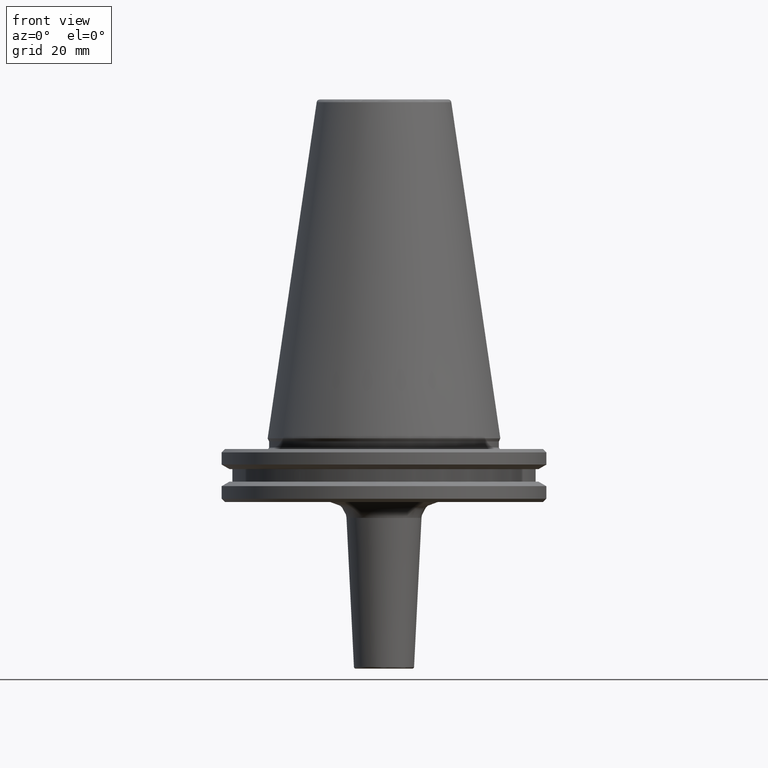
[diagram: clean part render]
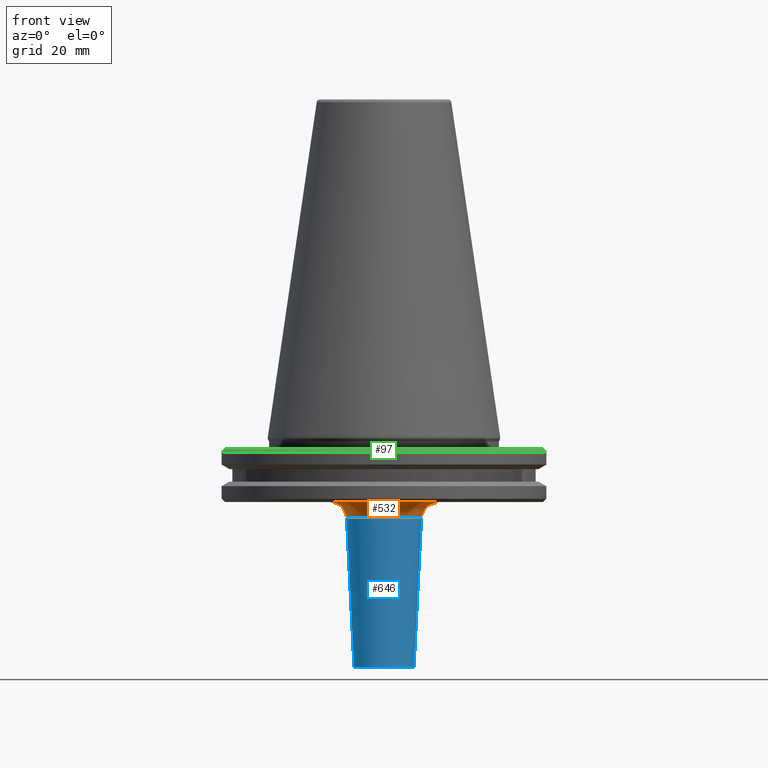
[diagram: same view with three faces highlighted in distinct colors, each labeled with its STEP entity id]
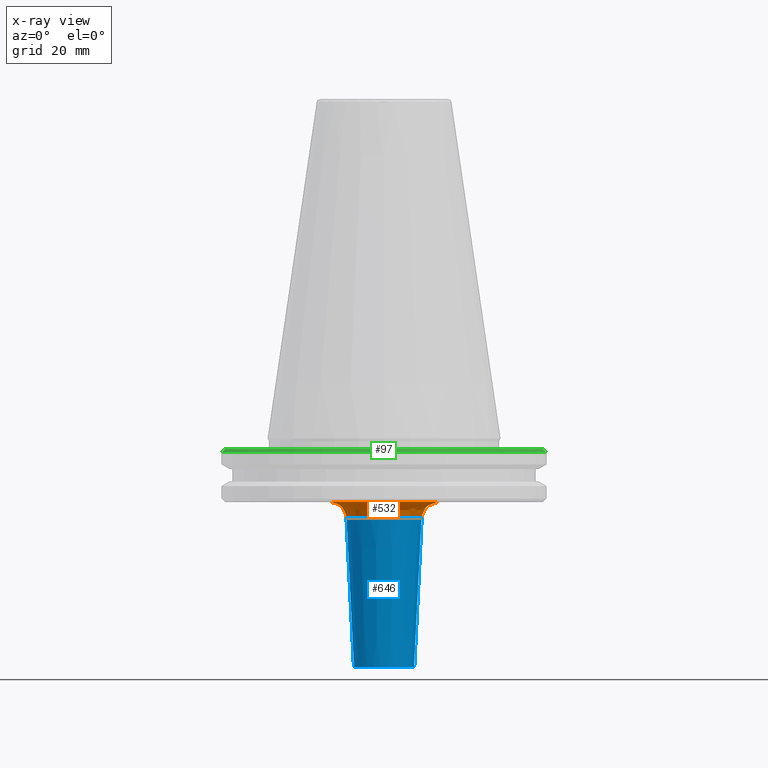
[diagram: x-ray of the same camera — body ghosted, the three highlighted faces saturated]
A machine part, front view with three faces highlighted in distinct colors.
The next image is the same camera in x-ray (body ghosted, the three faces saturated) — at least one of them is partly hidden behind the body in this view.
Their STEP definitions:

[orange] entity #532 — the highlighted face is a freeform B-spline surface patch.
#31 = CARTESIAN_POINT ( 'NONE',  ( -16.25624609862519400, 0.0000000000000000000, -19.10000000000000500 ) ) ;
#34 = CARTESIAN_POINT ( 'NONE',  ( 16.25624609862519400, 1.990815975083299200E-015, -19.10000000000000500 ) ) ;
#77 = CARTESIAN_POINT ( 'NONE',  ( 16.25624609862518700, -0.9944896297241667700, -19.10000000000000100 ) ) ;
#96 = CARTESIAN_POINT ( 'NONE',  ( 16.16578208544317600, -1.980501683347109900, -19.10000000000000500 ) ) ;
#101 = CARTESIAN_POINT ( 'NONE',  ( 15.97920005825526800, -2.988584113291415700, -19.10000000000000500 ) ) ;
#108 = CARTESIAN_POINT ( 'NONE',  ( 15.97276067736725800, -3.022830258312815900, -19.10000000000000900 ) ) ;
#120 = CARTESIAN_POINT ( 'NONE',  ( 15.96038008901330100, -3.087540710268735600, -19.10000000000000900 ) ) ;
#125 = CARTESIAN_POINT ( 'NONE',  ( 15.94152199984027600, -3.184522742714581700, -19.10000000000000900 ) ) ;
#133 = CARTESIAN_POINT ( 'NONE',  ( 15.89550934527534500, -3.410228633338638500, -19.10000000000000500 ) ) ;
#161 = CARTESIAN_POINT ( 'NONE',  ( 15.79544225016727500, -3.859298340921799100, -19.10000000000000500 ) ) ;
#181 = CARTESIAN_POINT ( 'NONE',  ( 15.56314091603833400, -4.748069461428223700, -19.10000000000000500 ) ) ;
#189 = CARTESIAN_POINT ( 'NONE',  ( 15.30888181150584500, -5.493813345302522900, -19.10000000000000500 ) ) ;
#199 = CARTESIAN_POINT ( 'NONE',  ( 15.10274154358021400, -6.014464738798348100, -19.10000000000000900 ) ) ;
#231 = CARTESIAN_POINT ( 'NONE',  ( 15.08948491553354500, -6.047654806972872200, -19.10000000000000500 ) ) ;
#233 = CARTESIAN_POINT ( 'NONE',  ( 15.06381459059165800, -6.111321170203168200, -19.10000000000000500 ) ) ;
#238 = CARTESIAN_POINT ( 'NONE',  ( 16.25624609862519400, 1.990815975083299200E-015, -19.10000000000000500 ) ) ;
#246 = AXIS2_PLACEMENT_3D ( 'NONE', #588, #1452, #954 ) ;
#249 = B_SPLINE_CURVE_WITH_KNOTS ( 'NONE', 3,
 ( #482, #1427, #1513, #1507, #1505, #1502, #1500, #1470, #1460, #1455, #1438, #1398, #1351, #1338, #1329, #1328, #1321, #1309, #1274, #1254, #1251, #1247, #1235, #1232, #1230, #1205, #1200, #1177, #1166, #1163, #1149, #1137, #1134, #1124, #1115, #1109, #1101, #1077, #1067, #1062, #1049, #1030, #1020, #1006, #995, #964, #950, #947, #933, #926, #898, #893, #888, #883, #882, #860, #841, #808, #799, #789, #772, #760, #758, #752, #742, #720, #709, #686, #680, #667, #627, #623, #620, #549, #536, #524, #484, #480, #475, #428, #406, #396, #374, #368, #328, #303, #281, #270, #233, #231, #199, #189, #181, #161, #133, #125, #120, #108, #101, #96, #77, #34 ),
 .UNSPECIFIED., .F., .F.,
 ( 4, 1, 1, 1, 1, 2, 2, 1, 1, 1, 1, 2, 2, 1, 1, 1, 2, 2, 2, 1, 1, 1, 2, 2, 1, 1, 1, 1, 2, 2, 1, 1, 1, 1, 2, 2, 2, 1, 1, 1, 1, 2, 2, 1, 1, 1, 1, 2, 2, 1, 1, 1, 2, 2, 2, 1, 1, 1, 2, 2, 1, 1, 1, 1, 2, 2, 1, 1, 1, 1, 2, 2, 4 ),
 ( 0.0000000000000000000, 0.03124999999999976400, 0.04687499999999966000, 0.05468749999999959100, 0.05859374999999955600, 0.06054687499999952100, 0.06249999999999948700, 0.09374999999999872300, 0.1093749999999983200, 0.1171874999999981100, 0.1210937499999979700, 0.1230468749999979200, 0.1249999999999978600, 0.1562499999999974200, 0.1718749999999971400, 0.1796874999999970300, 0.1835937499999970000, 0.1874999999999969700, 0.2499999999999958600, 0.2812499999999953400, 0.2968749999999950600, 0.3046874999999949500, 0.3085937499999948900, 0.3124999999999948900, 0.3437499999999946700, 0.3593749999999945600, 0.3671874999999945000, 0.3710937499999945000, 0.3730468749999944500, 0.3749999999999944500, 0.4062499999999956700, 0.4218749999999962800, 0.4296874999999966100, 0.4335937499999967800, 0.4355468749999968900, 0.4374999999999969500, 0.4999999999999987800, 0.5312499999999996700, 0.5468750000000001100, 0.5546875000000003300, 0.5585937500000005600, 0.5605468750000006700, 0.5625000000000007800, 0.5937500000000018900, 0.6093750000000024400, 0.6171875000000026600, 0.6210937500000027800, 0.6230468750000027800, 0.6250000000000026600, 0.6562500000000026600, 0.6718750000000026600, 0.6796875000000027800, 0.6835937500000027800, 0.6875000000000026600, 0.7500000000000021100, 0.7812500000000017800, 0.7968750000000016700, 0.8046875000000016700, 0.8085937500000016700, 0.8125000000000016700, 0.8437500000000017800, 0.8593750000000017800, 0.8671875000000016700, 0.8710937500000016700, 0.8730468750000016700, 0.8750000000000015500, 0.9062500000000012200, 0.9218750000000010000, 0.9296875000000008900, 0.9335937500000008900, 0.9355468750000007800, 0.9375000000000007800, 1.000000000000000000 ),
 .UNSPECIFIED. ) ;
#266 = CARTESIAN_POINT ( 'NONE',  ( -11.26248440423597300, 1.379256547609456900E-015, -23.85031191528054600 ) ) ;
#269 =( BOUNDED_SURFACE ( )  B_SPLINE_SURFACE ( 3, 3, ( 
 ( #373, #1144, #838, #790 ),
 ( #974, #721, #810, #958 ),
 ( #1227, #746, #716, #759 ),
 ( #754, #1449, #824, #817 ) ),
 .UNSPECIFIED., .F., .F., .T. ) 
 B_SPLINE_SURFACE_WITH_KNOTS ( ( 4, 4 ),
 ( 4, 4 ),
 ( 0.0000000000000000000, 1.000000000000000000 ),
 ( 0.0000000000000000000, 1.000000000000000000 ),
 .UNSPECIFIED. ) 
 GEOMETRIC_REPRESENTATION_ITEM ( )  RATIONAL_B_SPLINE_SURFACE ( (
 ( 1.000000000000000000, 0.3333333333333334300, 0.3333333333333334300, 1.000000000000000000),
 ( 0.8163648751936719600, 0.2721216250645573900, 0.2721216250645573900, 0.8163648751936719600),
 ( 0.8163648751936719600, 0.2721216250645573900, 0.2721216250645573900, 0.8163648751936719600),
 ( 1.000000000000000000, 0.3333333333333334300, 0.3333333333333334300, 1.000000000000000000) ) ) 
 REPRESENTATION_ITEM ( '' )  SURFACE ( )  );
#270 = CARTESIAN_POINT ( 'NONE',  ( 15.02502130439688700, -6.206670457545801200, -19.10000000000000900 ) ) ;
#281 = CARTESIAN_POINT ( 'NONE',  ( 14.93248904513546900, -6.428100325492272800, -19.10000000000000500 ) ) ;
#303 = CARTESIAN_POINT ( 'NONE',  ( 14.73936616071815000, -6.866752851306567400, -19.10000000000000900 ) ) ;
#328 = CARTESIAN_POINT ( 'NONE',  ( 14.32088692830555100, -7.727229062620486900, -19.10000000000000500 ) ) ;
#356 = CIRCLE ( 'NONE', #460, 5.000000000000000900 ) ;
#368 = CARTESIAN_POINT ( 'NONE',  ( 13.90693307724685300, -8.435930660350155800, -19.10000000000000500 ) ) ;
#373 = CARTESIAN_POINT ( 'NONE',  ( 16.25624609862519400, 1.990815975083299200E-015, -19.10000000000000900 ) ) ;
#374 = CARTESIAN_POINT ( 'NONE',  ( 13.56883900588601800, -8.953032138377713200, -19.10000000000000500 ) ) ;
#386 = EDGE_CURVE ( 'NONE', #399, #1291, #405, .T. ) ;
#396 = CARTESIAN_POINT ( 'NONE',  ( 13.52926321668050000, -9.012741250741493500, -19.10000000000000900 ) ) ;
#399 = VERTEX_POINT ( 'NONE', #31 ) ;
#400 = ORIENTED_EDGE ( 'NONE', *, *, #386, .T. ) ;
#405 = CIRCLE ( 'NONE', #594, 5.000000000000000900 ) ;
#406 = CARTESIAN_POINT ( 'NONE',  ( 13.45107262910401000, -9.129048701688153900, -19.10000000000000500 ) ) ;
#409 = CARTESIAN_POINT ( 'NONE',  ( 11.26248440423597300, 0.0000000000000000000, -23.85031191528054600 ) ) ;
#416 = DIRECTION ( 'NONE',  ( 1.000000000000000000, 1.224646799147353500E-016, 0.0000000000000000000 ) ) ;
#417 = ORIENTED_EDGE ( 'NONE', *, *, #1363, .F. ) ;
#428 = CARTESIAN_POINT ( 'NONE',  ( 13.33273795729730100, -9.302652496910194900, -19.10000000000000900 ) ) ;
#429 = DIRECTION ( 'NONE',  ( 1.224646799147353200E-016, -1.000000000000000000, 0.0000000000000000000 ) ) ;
#436 = CARTESIAN_POINT ( 'NONE',  ( 16.25624609862519400, 1.990815975083299200E-015, -24.10000000000000900 ) ) ;
#460 = AXIS2_PLACEMENT_3D ( 'NONE', #436, #429, #416 ) ;
#475 = CARTESIAN_POINT ( 'NONE',  ( 13.04928218998776400, -9.701726350709279200, -19.10000000000000900 ) ) ;
#480 = CARTESIAN_POINT ( 'NONE',  ( 12.45300452299316900, -10.47586738476476300, -19.10000000000000500 ) ) ;
#482 = CARTESIAN_POINT ( 'NONE',  ( -16.25624609862519400, 0.0000000000000000000, -19.10000000000000500 ) ) ;
#484 = CARTESIAN_POINT ( 'NONE',  ( 11.89156743863978200, -11.09826254502484700, -19.10000000000001200 ) ) ;
#518 = DIRECTION ( 'NONE',  ( -1.000000000000000000, 0.0000000000000000000, 0.0000000000000000000 ) ) ;
#524 = CARTESIAN_POINT ( 'NONE',  ( 10.70157068164613200, -12.28818046887600200, -19.10000000000000500 ) ) ;
#532 = ADVANCED_FACE ( 'NONE', ( #1208 ), #269, .F. ) ;
#536 = CARTESIAN_POINT ( 'NONE',  ( 9.834623893887398400, -12.99251979866894400, -19.10000000000000100 ) ) ;
#549 = CARTESIAN_POINT ( 'NONE',  ( 8.836885951391213500, -13.64477283976162300, -19.10000000000000100 ) ) ;
#588 = CARTESIAN_POINT ( 'NONE',  ( 0.0000000000000000000, 0.0000000000000000000, -23.85031191528054600 ) ) ;
#594 = AXIS2_PLACEMENT_3D ( 'NONE', #1191, #1314, #518 ) ;
#620 = CARTESIAN_POINT ( 'NONE',  ( 8.780388987827509000, -13.68119233603542500, -19.10000000000000100 ) ) ;
#623 = CARTESIAN_POINT ( 'NONE',  ( 8.664607847808580800, -13.75482468525016200, -19.10000000000000900 ) ) ;
#627 = CARTESIAN_POINT ( 'NONE',  ( 8.490342428530613700, -13.86411823606656500, -19.10000000000000500 ) ) ;
#667 = CARTESIAN_POINT ( 'NONE',  ( 8.079567152135075100, -14.11105171026500400, -19.10000000000000500 ) ) ;
#680 = CARTESIAN_POINT ( 'NONE',  ( 7.241392740356156200, -14.57257941450248500, -19.10000000000000500 ) ) ;
#686 = CARTESIAN_POINT ( 'NONE',  ( 6.494459486280769400, -14.91273588528994400, -19.10000000000000500 ) ) ;
#693 = EDGE_CURVE ( 'NONE', #1421, #726, #356, .T. ) ;
#709 = CARTESIAN_POINT ( 'NONE',  ( 5.951924354987205800, -15.12750066396870500, -19.10000000000000500 ) ) ;
#716 = CARTESIAN_POINT ( 'NONE',  ( -11.40301902046447500, -22.80603804092895700, -21.03961959071042600 ) ) ;
#720 = CARTESIAN_POINT ( 'NONE',  ( 5.922515818704218800, -15.13903545249559800, -19.10000000000000900 ) ) ;
#721 = CARTESIAN_POINT ( 'NONE',  ( 13.44204260176221200, -26.88408520352440700, -19.10000000000001200 ) ) ;
#724 = ORIENTED_EDGE ( 'NONE', *, *, #903, .F. ) ;
#726 = VERTEX_POINT ( 'NONE', #409 ) ;
#742 = CARTESIAN_POINT ( 'NONE',  ( 5.861111776184876600, -15.16291568760217400, -19.10000000000000500 ) ) ;
#746 = CARTESIAN_POINT ( 'NONE',  ( 11.40301902046448400, -22.80603804092895400, -21.03961959071042600 ) ) ;
#752 = CARTESIAN_POINT ( 'NONE',  ( 5.768924037422070100, -15.19844826456647800, -19.10000000000000500 ) ) ;
#754 = CARTESIAN_POINT ( 'NONE',  ( 11.26248440423597200, 1.379256547609456700E-015, -23.85031191528054600 ) ) ;
#758 = CARTESIAN_POINT ( 'NONE',  ( 5.553247588755622700, -15.27934318094765400, -19.10000000000000900 ) ) ;
#759 = CARTESIAN_POINT ( 'NONE',  ( -11.40301902046448000, -2.792934148805643100E-015, -21.03961959071043400 ) ) ;
#760 = CARTESIAN_POINT ( 'NONE',  ( 5.119607791876492600, -15.43307529423457000, -19.10000000000000900 ) ) ;
#772 = CARTESIAN_POINT ( 'NONE',  ( 4.243180599933277000, -15.70830864290658400, -19.10000000000000900 ) ) ;
#789 = CARTESIAN_POINT ( 'NONE',  ( 3.476275695664886800, -15.88897000822237300, -19.10000000000000500 ) ) ;
#790 = CARTESIAN_POINT ( 'NONE',  ( -16.25624609862519400, -3.981631950166598400E-015, -19.10000000000000900 ) ) ;
#799 = CARTESIAN_POINT ( 'NONE',  ( 2.925646189944105700, -15.99084681225769200, -19.09999999999999800 ) ) ;
#808 = CARTESIAN_POINT ( 'NONE',  ( 2.896899320433258000, -15.99607571195456900, -19.10000000000000500 ) ) ;
#810 = CARTESIAN_POINT ( 'NONE',  ( -13.44204260176220000, -26.88408520352441000, -19.10000000000001200 ) ) ;
#817 = CARTESIAN_POINT ( 'NONE',  ( -11.26248440423597200, -2.758513095218913400E-015, -23.85031191528054600 ) ) ;
#824 = CARTESIAN_POINT ( 'NONE',  ( -11.26248440423596400, -22.52496880847193900, -23.85031191528054600 ) ) ;
#838 = CARTESIAN_POINT ( 'NONE',  ( -16.25624609862518700, -32.51249219725038800, -19.10000000000000900 ) ) ;
#841 = CARTESIAN_POINT ( 'NONE',  ( 2.835739198430238700, -16.00703223854182900, -19.10000000000000100 ) ) ;
#846 = ORIENTED_EDGE ( 'NONE', *, *, #693, .F. ) ;
#860 = CARTESIAN_POINT ( 'NONE',  ( 2.743975733858285500, -16.02320190213454500, -19.10000000000000100 ) ) ;
#882 = CARTESIAN_POINT ( 'NONE',  ( 2.529698012218458900, -16.05907523316702500, -19.10000000000000500 ) ) ;
#883 = CARTESIAN_POINT ( 'NONE',  ( 2.100490685051016100, -16.12339835916327900, -19.10000000000000500 ) ) ;
#888 = CARTESIAN_POINT ( 'NONE',  ( 1.239468495165013000, -16.22235046688082600, -19.10000000000000100 ) ) ;
#893 = CARTESIAN_POINT ( 'NONE',  ( 0.4969794143179479500, -16.25626231188170200, -19.10000000000001200 ) ) ;
#898 = CARTESIAN_POINT ( 'NONE',  ( -0.9939588286358934700, -16.25621367211217100, -19.10000000000000500 ) ) ;
#903 = EDGE_CURVE ( 'NONE', #726, #1291, #1295, .T. ) ;
#926 = CARTESIAN_POINT ( 'NONE',  ( -1.980677004737839700, -16.16574963589389900, -19.10000000000000900 ) ) ;
#933 = CARTESIAN_POINT ( 'NONE',  ( -2.988578634497955000, -15.97920107230368600, -19.10000000000000500 ) ) ;
#947 = CARTESIAN_POINT ( 'NONE',  ( -3.022830258312815000, -15.97276067736725800, -19.10000000000000900 ) ) ;
#950 = CARTESIAN_POINT ( 'NONE',  ( -3.087540710268733300, -15.96038008901329700, -19.09999999999999800 ) ) ;
#954 = DIRECTION ( 'NONE',  ( -1.000000000000000000, 0.0000000000000000000, 0.0000000000000000000 ) ) ;
#958 = CARTESIAN_POINT ( 'NONE',  ( -13.44204260176220700, -3.292350889250089300E-015, -19.10000000000000900 ) ) ;
#964 = CARTESIAN_POINT ( 'NONE',  ( -3.184522742714580400, -15.94152199984028300, -19.10000000000000900 ) ) ;
#974 = CARTESIAN_POINT ( 'NONE',  ( 13.44204260176220700, 1.646175444625044600E-015, -19.10000000000000900 ) ) ;
#995 = CARTESIAN_POINT ( 'NONE',  ( -3.410228633338642900, -15.89550934527534100, -19.10000000000000500 ) ) ;
#1006 = CARTESIAN_POINT ( 'NONE',  ( -3.859298340921796500, -15.79544225016727000, -19.10000000000000100 ) ) ;
#1020 = CARTESIAN_POINT ( 'NONE',  ( -4.748069461428234400, -15.56314091603833000, -19.10000000000000900 ) ) ;
#1030 = CARTESIAN_POINT ( 'NONE',  ( -5.493813345302530000, -15.30888181150585000, -19.10000000000000500 ) ) ;
#1049 = CARTESIAN_POINT ( 'NONE',  ( -6.014464738798346300, -15.10274154358020800, -19.10000000000000100 ) ) ;
#1062 = CARTESIAN_POINT ( 'NONE',  ( -6.047654806972512500, -15.08948491553368300, -19.10000000000000500 ) ) ;
#1067 = CARTESIAN_POINT ( 'NONE',  ( -6.111321170202463000, -15.06381459059194100, -19.10000000000000500 ) ) ;
#1077 = CARTESIAN_POINT ( 'NONE',  ( -6.206670457544599500, -15.02502130439736300, -19.10000000000000500 ) ) ;
#1093 = EDGE_LOOP ( 'NONE', ( #846, #417, #400, #724 ) ) ;
#1101 = CARTESIAN_POINT ( 'NONE',  ( -6.428100325490029300, -14.93248904513635900, -19.10000000000000500 ) ) ;
#1109 = CARTESIAN_POINT ( 'NONE',  ( -6.866752851302716300, -14.73936616071966700, -19.10000000000000900 ) ) ;
#1115 = CARTESIAN_POINT ( 'NONE',  ( -7.727229062615359500, -14.32088692830758200, -19.10000000000000900 ) ) ;
#1124 = CARTESIAN_POINT ( 'NONE',  ( -8.435930660347237300, -13.90693307724800600, -19.10000000000000500 ) ) ;
#1134 = CARTESIAN_POINT ( 'NONE',  ( -8.953032138378082600, -13.56883900588587200, -19.10000000000000500 ) ) ;
#1137 = CARTESIAN_POINT ( 'NONE',  ( -9.012741250739688700, -13.52926321668186600, -19.10000000000000500 ) ) ;
#1144 = CARTESIAN_POINT ( 'NONE',  ( 16.25624609862519800, -32.51249219725037400, -19.10000000000000900 ) ) ;
#1149 = CARTESIAN_POINT ( 'NONE',  ( -9.129048701684721900, -13.45107262910661600, -19.10000000000000900 ) ) ;
#1163 = CARTESIAN_POINT ( 'NONE',  ( -9.302652496904483900, -13.33273795730162300, -19.10000000000000100 ) ) ;
#1166 = CARTESIAN_POINT ( 'NONE',  ( -9.701726350699498600, -13.04928218999517300, -19.10000000000000500 ) ) ;
#1177 = CARTESIAN_POINT ( 'NONE',  ( -10.47586738475171600, -12.45300452300304900, -19.10000000000000500 ) ) ;
#1191 = CARTESIAN_POINT ( 'NONE',  ( -16.25624609862519400, 0.0000000000000000000, -24.10000000000000900 ) ) ;
#1200 = CARTESIAN_POINT ( 'NONE',  ( -11.09826254501739800, -11.89156743864543100, -19.10000000000000900 ) ) ;
#1205 = CARTESIAN_POINT ( 'NONE',  ( -12.28818046889091100, -10.70157068163482900, -19.10000000000000100 ) ) ;
#1208 = FACE_OUTER_BOUND ( 'NONE', #1093, .T. ) ;
#1227 = CARTESIAN_POINT ( 'NONE',  ( 11.40301902046448000, 1.396467074402821200E-015, -21.03961959071043400 ) ) ;
#1230 = CARTESIAN_POINT ( 'NONE',  ( -12.99251979867530200, -9.834623893884659300, -19.10000000000000500 ) ) ;
#1232 = CARTESIAN_POINT ( 'NONE',  ( -13.64477283976123100, -8.836885951391389300, -19.10000000000000500 ) ) ;
#1235 = CARTESIAN_POINT ( 'NONE',  ( -13.68119233603611600, -8.780388987825627800, -19.10000000000000100 ) ) ;
#1247 = CARTESIAN_POINT ( 'NONE',  ( -13.75482468525147400, -8.664607847804997900, -19.10000000000000500 ) ) ;
#1251 = CARTESIAN_POINT ( 'NONE',  ( -13.86411823606875300, -8.490342428524670000, -19.10000000000000500 ) ) ;
#1254 = CARTESIAN_POINT ( 'NONE',  ( -14.11105171026873800, -8.079567152124877100, -19.10000000000000900 ) ) ;
#1274 = CARTESIAN_POINT ( 'NONE',  ( -14.57257941450746200, -7.241392740342544900, -19.10000000000000100 ) ) ;
#1291 = VERTEX_POINT ( 'NONE', #266 ) ;
#1295 = CIRCLE ( 'NONE', #246, 11.26248440423597000 ) ;
#1309 = CARTESIAN_POINT ( 'NONE',  ( -14.91273588529279300, -6.494459486272990700, -19.10000000000000100 ) ) ;
#1314 = DIRECTION ( 'NONE',  ( 0.0000000000000000000, 1.000000000000000000, 0.0000000000000000000 ) ) ;
#1321 = CARTESIAN_POINT ( 'NONE',  ( -15.12750066396851700, -5.951924354987689900, -19.10000000000000500 ) ) ;
#1328 = CARTESIAN_POINT ( 'NONE',  ( -15.13903545249528500, -5.922515818705082100, -19.10000000000000100 ) ) ;
#1329 = CARTESIAN_POINT ( 'NONE',  ( -15.16291568760155600, -5.861111776186560500, -19.10000000000000100 ) ) ;
#1338 = CARTESIAN_POINT ( 'NONE',  ( -15.19844826456542600, -5.768924037424946900, -19.10000000000000900 ) ) ;
#1351 = CARTESIAN_POINT ( 'NONE',  ( -15.27934318094570000, -5.553247588760992700, -19.10000000000000900 ) ) ;
#1363 = EDGE_CURVE ( 'NONE', #399, #1421, #249, .T. ) ;
#1398 = CARTESIAN_POINT ( 'NONE',  ( -15.43307529423121100, -5.119607791885702100, -19.10000000000000900 ) ) ;
#1421 = VERTEX_POINT ( 'NONE', #238 ) ;
#1427 = CARTESIAN_POINT ( 'NONE',  ( -16.25624609862520500, -0.4970670446490914100, -19.10000000000000900 ) ) ;
#1438 = CARTESIAN_POINT ( 'NONE',  ( -15.70830864290211400, -4.243180599945557000, -19.10000000000000900 ) ) ;
#1449 = CARTESIAN_POINT ( 'NONE',  ( 11.26248440423597300, -22.52496880847193600, -23.85031191528054600 ) ) ;
#1452 = DIRECTION ( 'NONE',  ( 0.0000000000000000000, 0.0000000000000000000, -1.000000000000000000 ) ) ;
#1455 = CARTESIAN_POINT ( 'NONE',  ( -15.88897000821981600, -3.476275695671909200, -19.10000000000000100 ) ) ;
#1460 = CARTESIAN_POINT ( 'NONE',  ( -15.99084681225785500, -2.925646189943667900, -19.10000000000000100 ) ) ;
#1470 = CARTESIAN_POINT ( 'NONE',  ( -15.99607371696402000, -2.896910103071662400, -19.10000000000000500 ) ) ;
#1500 = CARTESIAN_POINT ( 'NONE',  ( -16.00702834356028600, -2.835760250248073400, -19.10000000000000100 ) ) ;
#1502 = CARTESIAN_POINT ( 'NONE',  ( -16.02319525216605500, -2.744011675986296700, -19.10000000000000100 ) ) ;
#1505 = CARTESIAN_POINT ( 'NONE',  ( -16.05906281989251400, -2.529765104190739900, -19.09999999999999800 ) ) ;
#1507 = CARTESIAN_POINT ( 'NONE',  ( -16.12337707926409900, -2.100605699860643000, -19.10000000000000500 ) ) ;
#1513 = CARTESIAN_POINT ( 'NONE',  ( -16.22232209368193900, -1.239621848244517400, -19.10000000000000500 ) ) ;

[blue] entity #646 — the highlighted conical surface has half-angle 2.862 deg.
#2 = CARTESIAN_POINT ( 'NONE',  ( 9.023751559576402000, 0.0000000000000000000, -68.62496880847193400 ) ) ;
#65 = FACE_OUTER_BOUND ( 'NONE', #1323, .T. ) ;
#151 = DIRECTION ( 'NONE',  ( 1.000000000000000000, 0.0000000000000000000, 0.0000000000000000000 ) ) ;
#215 = DIRECTION ( 'NONE',  ( 0.04993761694389226700, 0.0000000000000000000, 0.9987523388778446500 ) ) ;
#242 = DIRECTION ( 'NONE',  ( 0.0000000000000000000, 0.0000000000000000000, 1.000000000000000000 ) ) ;
#246 = AXIS2_PLACEMENT_3D ( 'NONE', #588, #1452, #954 ) ;
#257 = CARTESIAN_POINT ( 'NONE',  ( 11.26248440423597300, 0.0000000000000000000, -23.85031191528056000 ) ) ;
#266 = CARTESIAN_POINT ( 'NONE',  ( -11.26248440423597300, 1.379256547609456900E-015, -23.85031191528054600 ) ) ;
#409 = CARTESIAN_POINT ( 'NONE',  ( 11.26248440423597300, 0.0000000000000000000, -23.85031191528054600 ) ) ;
#451 = CARTESIAN_POINT ( 'NONE',  ( -9.023751559576402000, 1.242173696991537300E-015, -68.62496880847193400 ) ) ;
#452 = EDGE_CURVE ( 'NONE', #1375, #1184, #1386, .T. ) ;
#556 = EDGE_CURVE ( 'NONE', #1375, #1291, #1428, .T. ) ;
#561 = ORIENTED_EDGE ( 'NONE', *, *, #452, .T. ) ;
#574 = CARTESIAN_POINT ( 'NONE',  ( 0.0000000000000000000, 0.0000000000000000000, -23.85031191528056000 ) ) ;
#583 = DIRECTION ( 'NONE',  ( 1.000000000000000000, 0.0000000000000000000, 0.0000000000000000000 ) ) ;
#588 = CARTESIAN_POINT ( 'NONE',  ( 0.0000000000000000000, 0.0000000000000000000, -23.85031191528054600 ) ) ;
#599 = DIRECTION ( 'NONE',  ( 0.0000000000000000000, 0.0000000000000000000, 1.000000000000000000 ) ) ;
#646 = ADVANCED_FACE ( 'NONE', ( #65 ), #1264, .T. ) ;
#661 = ORIENTED_EDGE ( 'NONE', *, *, #1456, .T. ) ;
#726 = VERTEX_POINT ( 'NONE', #409 ) ;
#813 = AXIS2_PLACEMENT_3D ( 'NONE', #1056, #242, #151 ) ;
#873 = DIRECTION ( 'NONE',  ( -0.04993761694389226700, 6.115594274738429300E-018, 0.9987523388778446500 ) ) ;
#889 = VECTOR ( 'NONE', #873, 1000.000000000000200 ) ;
#903 = EDGE_CURVE ( 'NONE', #726, #1291, #1295, .T. ) ;
#927 = CARTESIAN_POINT ( 'NONE',  ( -11.26248440423597300, 1.379256547609456900E-015, -23.85031191528056000 ) ) ;
#954 = DIRECTION ( 'NONE',  ( -1.000000000000000000, 0.0000000000000000000, 0.0000000000000000000 ) ) ;
#1009 = AXIS2_PLACEMENT_3D ( 'NONE', #574, #599, #583 ) ;
#1056 = CARTESIAN_POINT ( 'NONE',  ( 0.0000000000000000000, 0.0000000000000000000, -68.62496880847193400 ) ) ;
#1089 = LINE ( 'NONE', #257, #1175 ) ;
#1175 = VECTOR ( 'NONE', #215, 1000.000000000000200 ) ;
#1184 = VERTEX_POINT ( 'NONE', #2 ) ;
#1264 = CONICAL_SURFACE ( 'NONE', #1009, 11.26248440423597300, 0.04995839572194279300 ) ;
#1291 = VERTEX_POINT ( 'NONE', #266 ) ;
#1295 = CIRCLE ( 'NONE', #246, 11.26248440423597000 ) ;
#1323 = EDGE_LOOP ( 'NONE', ( #1333, #561, #661, #1509 ) ) ;
#1333 = ORIENTED_EDGE ( 'NONE', *, *, #556, .F. ) ;
#1375 = VERTEX_POINT ( 'NONE', #451 ) ;
#1386 = CIRCLE ( 'NONE', #813, 9.023751559576402000 ) ;
#1428 = LINE ( 'NONE', #927, #889 ) ;
#1452 = DIRECTION ( 'NONE',  ( 0.0000000000000000000, 0.0000000000000000000, -1.000000000000000000 ) ) ;
#1456 = EDGE_CURVE ( 'NONE', #1184, #726, #1089, .T. ) ;
#1509 = ORIENTED_EDGE ( 'NONE', *, *, #903, .T. ) ;

[green] entity #97 — the highlighted conical surface has half-angle 45 deg.
#76 = CARTESIAN_POINT ( 'NONE',  ( -47.74999999999995700, 0.0000000000000000000, -3.199999999999869600 ) ) ;
#97 = ADVANCED_FACE ( 'NONE', ( #337 ), #175, .T. ) ;
#107 = DIRECTION ( 'NONE',  ( 1.000000000000000000, 0.0000000000000000000, 0.0000000000000000000 ) ) ;
#157 = DIRECTION ( 'NONE',  ( -0.0000000000000000000, -0.0000000000000000000, 1.000000000000000000 ) ) ;
#165 = CARTESIAN_POINT ( 'NONE',  ( 0.0000000000000000000, 0.0000000000000000000, -4.199999999999870500 ) ) ;
#175 = CONICAL_SURFACE ( 'NONE', #1157, 48.63284271247462700, 0.7853981633974517200 ) ;
#337 = FACE_OUTER_BOUND ( 'NONE', #1402, .T. ) ;
#395 = ORIENTED_EDGE ( 'NONE', *, *, #1514, .F. ) ;
#438 = DIRECTION ( 'NONE',  ( 0.7071067811865499000, 8.659560562354961200E-017, -0.7071067811865451300 ) ) ;
#446 = CARTESIAN_POINT ( 'NONE',  ( 48.63284271247462700, 5.955805516126873700E-015, -4.082842712474612100 ) ) ;
#456 = AXIS2_PLACEMENT_3D ( 'NONE', #912, #1492, #1405 ) ;
#513 = CARTESIAN_POINT ( 'NONE',  ( 48.74999999999989300, 5.970153145843333000E-015, -4.199999999999870500 ) ) ;
#603 = CARTESIAN_POINT ( 'NONE',  ( 47.74999999999995700, 5.908920805885974100E-015, -3.199999999999869600 ) ) ;
#605 = DIRECTION ( 'NONE',  ( 0.0000000000000000000, 0.0000000000000000000, -1.000000000000000000 ) ) ;
#625 = CIRCLE ( 'NONE', #1391, 48.74999999999995700 ) ;
#632 = CARTESIAN_POINT ( 'NONE',  ( 0.0000000000000000000, 0.0000000000000000000, -4.082842712474612100 ) ) ;
#769 = VERTEX_POINT ( 'NONE', #513 ) ;
#845 = ORIENTED_EDGE ( 'NONE', *, *, #1276, .T. ) ;
#872 = VECTOR ( 'NONE', #1214, 1000.000000000000100 ) ;
#908 = DIRECTION ( 'NONE',  ( -1.000000000000000000, 0.0000000000000000000, 0.0000000000000000000 ) ) ;
#912 = CARTESIAN_POINT ( 'NONE',  ( 0.0000000000000000000, 0.0000000000000000000, -3.199999999999869600 ) ) ;
#956 = LINE ( 'NONE', #446, #1389 ) ;
#1050 = VERTEX_POINT ( 'NONE', #1182 ) ;
#1157 = AXIS2_PLACEMENT_3D ( 'NONE', #632, #605, #908 ) ;
#1182 = CARTESIAN_POINT ( 'NONE',  ( -48.74999999999989300, 0.0000000000000000000, -4.199999999999870500 ) ) ;
#1214 = DIRECTION ( 'NONE',  ( -0.7071067811865499000, 0.0000000000000000000, -0.7071067811865451300 ) ) ;
#1276 = EDGE_CURVE ( 'NONE', #1322, #1050, #1404, .T. ) ;
#1322 = VERTEX_POINT ( 'NONE', #76 ) ;
#1349 = CIRCLE ( 'NONE', #456, 47.74999999999995700 ) ;
#1355 = VERTEX_POINT ( 'NONE', #603 ) ;
#1373 = ORIENTED_EDGE ( 'NONE', *, *, #1397, .F. ) ;
#1389 = VECTOR ( 'NONE', #438, 1000.000000000000100 ) ;
#1391 = AXIS2_PLACEMENT_3D ( 'NONE', #165, #157, #107 ) ;
#1397 = EDGE_CURVE ( 'NONE', #1355, #769, #956, .T. ) ;
#1399 = ORIENTED_EDGE ( 'NONE', *, *, #1447, .T. ) ;
#1402 = EDGE_LOOP ( 'NONE', ( #1373, #395, #845, #1399 ) ) ;
#1404 = LINE ( 'NONE', #1436, #872 ) ;
#1405 = DIRECTION ( 'NONE',  ( 1.000000000000000000, 0.0000000000000000000, 0.0000000000000000000 ) ) ;
#1436 = CARTESIAN_POINT ( 'NONE',  ( -48.63284271247462700, 0.0000000000000000000, -4.082842712474612100 ) ) ;
#1447 = EDGE_CURVE ( 'NONE', #1050, #769, #625, .T. ) ;
#1492 = DIRECTION ( 'NONE',  ( -0.0000000000000000000, -0.0000000000000000000, 1.000000000000000000 ) ) ;
#1514 = EDGE_CURVE ( 'NONE', #1322, #1355, #1349, .T. ) ;